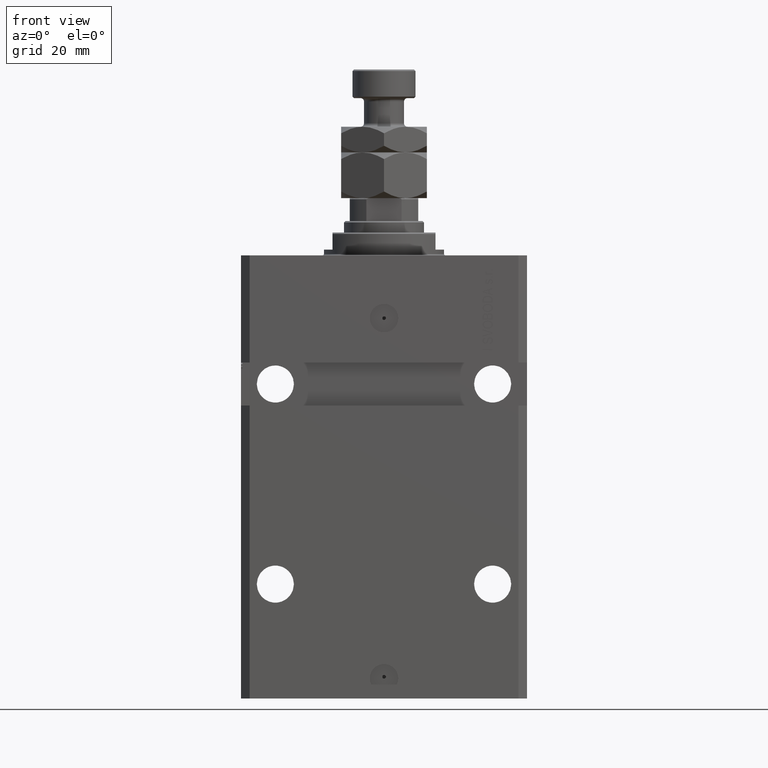
[diagram: clean part render]
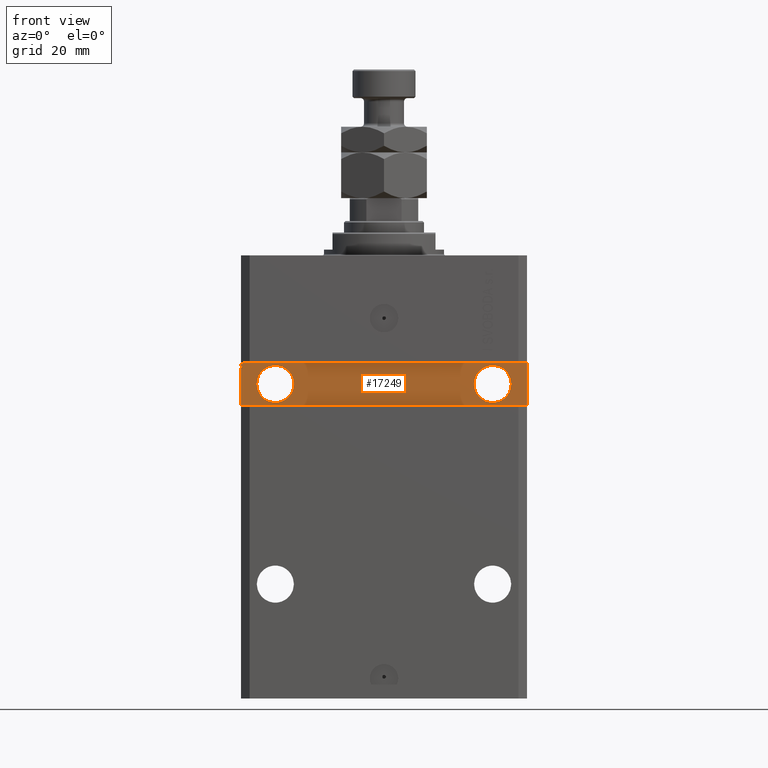
[diagram: same view with one face highlighted and labeled with its STEP entity id]
A machine part, front view. The second image highlights one B-rep face of the part: STEP entity #17249.
In plain terms, the highlighted planar face has unit normal (0, -1, 0).
Its self-contained STEP definition (entity closure, byte-faithful):
#321 = AXIS2_PLACEMENT_3D ( 'NONE', #2270, #9826, #5792 ) ;
#343 = DIRECTION ( 'NONE',  ( 8.806446732139696505E-17, -1.000000000000000000, 6.162975822039154730E-33 ) ) ;
#609 = VECTOR ( 'NONE', #31804, 1000.000000000000000 ) ;
#830 = EDGE_CURVE ( 'NONE', #43562, #27592, #39396, .T. ) ;
#1061 = DIRECTION ( 'NONE',  ( 0.000000000000000000, 0.000000000000000000, -1.000000000000000000 ) ) ;
#1133 = CARTESIAN_POINT ( 'NONE',  ( -37.99999999999998579, -32.50000000000000711, -45.00000000000000711 ) ) ;
#1711 = EDGE_CURVE ( 'NONE', #27592, #37339, #42713, .T. ) ;
#2270 = CARTESIAN_POINT ( 'NONE',  ( 4.616128571667024604E-15, -32.50000000000000000, 0.000000000000000000 ) ) ;
#2447 = LINE ( 'NONE', #17816, #2815 ) ;
#2815 = VECTOR ( 'NONE', #20855, 1000.000000000000000 ) ;
#3192 = EDGE_CURVE ( 'NONE', #38215, #45845, #28479, .T. ) ;
#3212 = DIRECTION ( 'NONE',  ( 1.101411730780568590E-16, -1.000000000000000000, 0.000000000000000000 ) ) ;
#4005 = AXIS2_PLACEMENT_3D ( 'NONE', #9714, #48071, #36722 ) ;
#4442 = CARTESIAN_POINT ( 'NONE',  ( -50.00000000000002842, -32.50000000000000711, -37.50000000000000711 ) ) ;
#4774 = VECTOR ( 'NONE', #7871, 1000.000000000000000 ) ;
#4887 = VERTEX_POINT ( 'NONE', #31528 ) ;
#5037 = VERTEX_POINT ( 'NONE', #34774 ) ;
#5375 = VECTOR ( 'NONE', #28230, 1000.000000000000000 ) ;
#5429 = VERTEX_POINT ( 'NONE', #20544 ) ;
#5792 = DIRECTION ( 'NONE',  ( 1.000000000000000000, 1.387778780781445182E-16, 0.000000000000000000 ) ) ;
#5931 = ORIENTED_EDGE ( 'NONE', *, *, #9435, .T. ) ;
#6084 = DIRECTION ( 'NONE',  ( 0.000000000000000000, 0.000000000000000000, -1.000000000000000000 ) ) ;
#6757 = CIRCLE ( 'NONE', #13188, 6.499999999999999112 ) ;
#6884 = EDGE_LOOP ( 'NONE', ( #16158, #33322 ) ) ;
#7456 = EDGE_CURVE ( 'NONE', #15165, #30683, #11274, .T. ) ;
#7871 = DIRECTION ( 'NONE',  ( 0.000000000000000000, 0.000000000000000000, 1.000000000000000000 ) ) ;
#8655 = VERTEX_POINT ( 'NONE', #11544 ) ;
#8659 = VECTOR ( 'NONE', #22741, 1000.000000000000000 ) ;
#8671 = CARTESIAN_POINT ( 'NONE',  ( -49.50000000000001421, -32.50000000000001421, -38.87066340383893959 ) ) ;
#9435 = EDGE_CURVE ( 'NONE', #37339, #20258, #39413, .T. ) ;
#9564 = EDGE_CURVE ( 'NONE', #18670, #38215, #16928, .T. ) ;
#9714 = CARTESIAN_POINT ( 'NONE',  ( 38.00000000000001421, -32.50000000000000000, -45.00000000000000000 ) ) ;
#9826 = DIRECTION ( 'NONE',  ( 1.387778780781445182E-16, -1.000000000000000000, 0.000000000000000000 ) ) ;
#10664 = EDGE_CURVE ( 'NONE', #5037, #48262, #14703, .T. ) ;
#11274 = CIRCLE ( 'NONE', #4005, 6.499999999999999112 ) ;
#11544 = CARTESIAN_POINT ( 'NONE',  ( -50.00000000000002842, -32.50000000000000711, -37.50000000000000711 ) ) ;
#11656 = CARTESIAN_POINT ( 'NONE',  ( 49.99999999999999289, -32.49999999999999289, -52.49999999999998579 ) ) ;
#12018 = CARTESIAN_POINT ( 'NONE',  ( 44.50000000000001421, -32.50000000000000000, -45.00000000000000000 ) ) ;
#12664 = EDGE_CURVE ( 'NONE', #8655, #18636, #24101, .T. ) ;
#13067 = ORIENTED_EDGE ( 'NONE', *, *, #12664, .T. ) ;
#13188 = AXIS2_PLACEMENT_3D ( 'NONE', #42492, #343, #23288 ) ;
#13320 = LINE ( 'NONE', #40576, #25621 ) ;
#13499 = EDGE_LOOP ( 'NONE', ( #22918, #28928 ) ) ;
#14481 = CARTESIAN_POINT ( 'NONE',  ( 49.99999999999999289, -32.49999999999999289, -52.49999999999998579 ) ) ;
#14703 = CIRCLE ( 'NONE', #47741, 6.499999999999999112 ) ;
#15149 = EDGE_CURVE ( 'NONE', #48262, #5037, #42293, .T. ) ;
#15155 = DIRECTION ( 'NONE',  ( 1.000000000000000000, 0.000000000000000000, 0.000000000000000000 ) ) ;
#15165 = VERTEX_POINT ( 'NONE', #16514 ) ;
#16158 = ORIENTED_EDGE ( 'NONE', *, *, #16850, .F. ) ;
#16313 = CARTESIAN_POINT ( 'NONE',  ( -49.50000000000000711, -32.50000000000000711, -37.99999999999999289 ) ) ;
#16478 = LINE ( 'NONE', #42755, #20461 ) ;
#16514 = CARTESIAN_POINT ( 'NONE',  ( 31.50000000000001421, -32.50000000000000000, -45.00000000000000000 ) ) ;
#16850 = EDGE_CURVE ( 'NONE', #30683, #15165, #6757, .T. ) ;
#16928 = LINE ( 'NONE', #20955, #35571 ) ;
#17249 = ADVANCED_FACE ( 'NONE', ( #40875, #44909, #22162 ), #40372, .T. ) ;
#17816 = CARTESIAN_POINT ( 'NONE',  ( -49.50000000000016342, -32.50000000000000711, -39.86910993535713743 ) ) ;
#18035 = EDGE_CURVE ( 'NONE', #4887, #8655, #16478, .T. ) ;
#18636 = VERTEX_POINT ( 'NONE', #28622 ) ;
#18670 = VERTEX_POINT ( 'NONE', #25105 ) ;
#19431 = LINE ( 'NONE', #49474, #26003 ) ;
#19621 = ORIENTED_EDGE ( 'NONE', *, *, #9564, .T. ) ;
#20255 = DIRECTION ( 'NONE',  ( -1.000000000000000000, -1.387778780781445182E-16, -1.387778780781445182E-16 ) ) ;
#20258 = VERTEX_POINT ( 'NONE', #21804 ) ;
#20426 = CARTESIAN_POINT ( 'NONE',  ( -50.00000000000002842, -32.50000000000000711, -52.50000000000000000 ) ) ;
#20461 = VECTOR ( 'NONE', #20255, 1000.000000000000000 ) ;
#20544 = CARTESIAN_POINT ( 'NONE',  ( -49.49999999999999289, -32.50000000000000711, -39.43474004052496440 ) ) ;
#20855 = DIRECTION ( 'NONE',  ( 3.791485858024926499E-13, 5.261743621399924533E-29, 1.000000000000000000 ) ) ;
#20955 = CARTESIAN_POINT ( 'NONE',  ( -50.00000000000002842, -32.50000000000000711, -37.50000000000000711 ) ) ;
#21252 = VERTEX_POINT ( 'NONE', #41766 ) ;
#21804 = CARTESIAN_POINT ( 'NONE',  ( -50.00000000000002842, -32.50000000000000711, -38.87066340383893959 ) ) ;
#22162 = FACE_OUTER_BOUND ( 'NONE', #42652, .T. ) ;
#22423 = CARTESIAN_POINT ( 'NONE',  ( -31.49999999999998579, -32.50000000000000711, -45.00000000000000711 ) ) ;
#22450 = CARTESIAN_POINT ( 'NONE',  ( -50.00000000000002842, -32.50000000000000711, -37.99999999999999289 ) ) ;
#22741 = DIRECTION ( 'NONE',  ( -1.000000000000000000, -0.000000000000000000, -0.000000000000000000 ) ) ;
#22918 = ORIENTED_EDGE ( 'NONE', *, *, #15149, .F. ) ;
#23288 = DIRECTION ( 'NONE',  ( 1.000000000000000000, 0.000000000000000000, 0.000000000000000000 ) ) ;
#23328 = ORIENTED_EDGE ( 'NONE', *, *, #1711, .T. ) ;
#23506 = CARTESIAN_POINT ( 'NONE',  ( -50.00000000000002842, -32.50000000000000711, -37.50000000000000711 ) ) ;
#24101 = LINE ( 'NONE', #4442, #42973 ) ;
#24576 = DIRECTION ( 'NONE',  ( 1.000000000000000000, 0.000000000000000000, 0.000000000000000000 ) ) ;
#25073 = DIRECTION ( 'NONE',  ( 1.101411730780568590E-16, -1.000000000000000000, 0.000000000000000000 ) ) ;
#25105 = CARTESIAN_POINT ( 'NONE',  ( -50.00000000000002842, -32.50000000000000711, -39.43474002179300442 ) ) ;
#25163 = DIRECTION ( 'NONE',  ( -1.000000000000000000, -0.000000000000000000, -0.000000000000000000 ) ) ;
#25621 = VECTOR ( 'NONE', #25163, 1000.000000000000000 ) ;
#26003 = VECTOR ( 'NONE', #15155, 1000.000000000000000 ) ;
#26164 = CARTESIAN_POINT ( 'NONE',  ( -37.99999999999998579, -32.50000000000000711, -45.00000000000000711 ) ) ;
#26256 = ORIENTED_EDGE ( 'NONE', *, *, #18035, .T. ) ;
#27153 = DIRECTION ( 'NONE',  ( 1.000000000000000000, 0.000000000000000000, 0.000000000000000000 ) ) ;
#27592 = VERTEX_POINT ( 'NONE', #16313 ) ;
#27866 = DIRECTION ( 'NONE',  ( 0.000000000000000000, 0.000000000000000000, -1.000000000000000000 ) ) ;
#28230 = DIRECTION ( 'NONE',  ( 1.000000000000000000, 1.387778780781445182E-16, 1.387778780781445182E-16 ) ) ;
#28479 = LINE ( 'NONE', #20426, #5375 ) ;
#28622 = CARTESIAN_POINT ( 'NONE',  ( -50.00000000000002842, -32.50000000000000711, -37.62144886363636687 ) ) ;
#28928 = ORIENTED_EDGE ( 'NONE', *, *, #10664, .F. ) ;
#28980 = ORIENTED_EDGE ( 'NONE', *, *, #46775, .F. ) ;
#29783 = ORIENTED_EDGE ( 'NONE', *, *, #3192, .T. ) ;
#30683 = VERTEX_POINT ( 'NONE', #12018 ) ;
#30923 = EDGE_CURVE ( 'NONE', #43562, #18636, #13320, .T. ) ;
#31320 = CARTESIAN_POINT ( 'NONE',  ( -49.50000000000000711, -32.49999999999999289, -37.99999999999999289 ) ) ;
#31528 = CARTESIAN_POINT ( 'NONE',  ( 49.99999999999999289, -32.49999999999999289, -37.49999999999999289 ) ) ;
#31804 = DIRECTION ( 'NONE',  ( 0.000000000000000000, 0.000000000000000000, -1.000000000000000000 ) ) ;
#31839 = EDGE_CURVE ( 'NONE', #45845, #4887, #49754, .T. ) ;
#32219 = ORIENTED_EDGE ( 'NONE', *, *, #43079, .F. ) ;
#32969 = CARTESIAN_POINT ( 'NONE',  ( -49.50000000000000711, -32.50000000000000711, -37.62144886363635976 ) ) ;
#33322 = ORIENTED_EDGE ( 'NONE', *, *, #7456, .F. ) ;
#33392 = VECTOR ( 'NONE', #35421, 1000.000000000000000 ) ;
#34199 = AXIS2_PLACEMENT_3D ( 'NONE', #1133, #25073, #24576 ) ;
#34774 = CARTESIAN_POINT ( 'NONE',  ( -44.49999999999998579, -32.50000000000000711, -45.00000000000000711 ) ) ;
#35179 = LINE ( 'NONE', #8671, #33392 ) ;
#35421 = DIRECTION ( 'NONE',  ( -1.000000000000000000, -0.000000000000000000, -0.000000000000000000 ) ) ;
#35571 = VECTOR ( 'NONE', #6084, 1000.000000000000000 ) ;
#35865 = ORIENTED_EDGE ( 'NONE', *, *, #31839, .T. ) ;
#36722 = DIRECTION ( 'NONE',  ( 1.000000000000000000, 0.000000000000000000, 0.000000000000000000 ) ) ;
#37339 = VERTEX_POINT ( 'NONE', #22450 ) ;
#38098 = ORIENTED_EDGE ( 'NONE', *, *, #47356, .F. ) ;
#38215 = VERTEX_POINT ( 'NONE', #46439 ) ;
#39396 = LINE ( 'NONE', #47219, #609 ) ;
#39413 = LINE ( 'NONE', #23506, #47669 ) ;
#39439 = ORIENTED_EDGE ( 'NONE', *, *, #830, .T. ) ;
#40372 = PLANE ( 'NONE',  #321 ) ;
#40576 = CARTESIAN_POINT ( 'NONE',  ( -49.50000000000000711, -32.49999999999999289, -37.62144886363635976 ) ) ;
#40875 = FACE_BOUND ( 'NONE', #6884, .T. ) ;
#41766 = CARTESIAN_POINT ( 'NONE',  ( -49.49999999999977973, -32.50000000000000711, -38.87066337907741342 ) ) ;
#42268 = ORIENTED_EDGE ( 'NONE', *, *, #30923, .F. ) ;
#42293 = CIRCLE ( 'NONE', #34199, 6.499999999999999112 ) ;
#42492 = CARTESIAN_POINT ( 'NONE',  ( 38.00000000000001421, -32.50000000000000000, -45.00000000000000000 ) ) ;
#42652 = EDGE_LOOP ( 'NONE', ( #5931, #28980, #38098, #32219, #19621, #29783, #35865, #26256, #13067, #42268, #39439, #23328 ) ) ;
#42713 = LINE ( 'NONE', #31320, #8659 ) ;
#42755 = CARTESIAN_POINT ( 'NONE',  ( 49.99999999999999289, -32.49999999999999289, -37.49999999999999289 ) ) ;
#42973 = VECTOR ( 'NONE', #27866, 1000.000000000000000 ) ;
#43079 = EDGE_CURVE ( 'NONE', #18670, #5429, #19431, .T. ) ;
#43562 = VERTEX_POINT ( 'NONE', #32969 ) ;
#44909 = FACE_BOUND ( 'NONE', #13499, .T. ) ;
#45845 = VERTEX_POINT ( 'NONE', #14481 ) ;
#46439 = CARTESIAN_POINT ( 'NONE',  ( -50.00000000000002842, -32.50000000000000711, -52.50000000000000000 ) ) ;
#46775 = EDGE_CURVE ( 'NONE', #21252, #20258, #35179, .T. ) ;
#47219 = CARTESIAN_POINT ( 'NONE',  ( -49.50000000000000711, -32.49999999999999289, -37.62144886363635976 ) ) ;
#47356 = EDGE_CURVE ( 'NONE', #5429, #21252, #2447, .T. ) ;
#47669 = VECTOR ( 'NONE', #1061, 1000.000000000000000 ) ;
#47741 = AXIS2_PLACEMENT_3D ( 'NONE', #26164, #3212, #27153 ) ;
#48071 = DIRECTION ( 'NONE',  ( 8.806446732139696505E-17, -1.000000000000000000, 6.162975822039154730E-33 ) ) ;
#48262 = VERTEX_POINT ( 'NONE', #22423 ) ;
#49474 = CARTESIAN_POINT ( 'NONE',  ( -49.50000000000001421, -32.50000000000000711, -39.43474002179300442 ) ) ;
#49754 = LINE ( 'NONE', #11656, #4774 ) ;